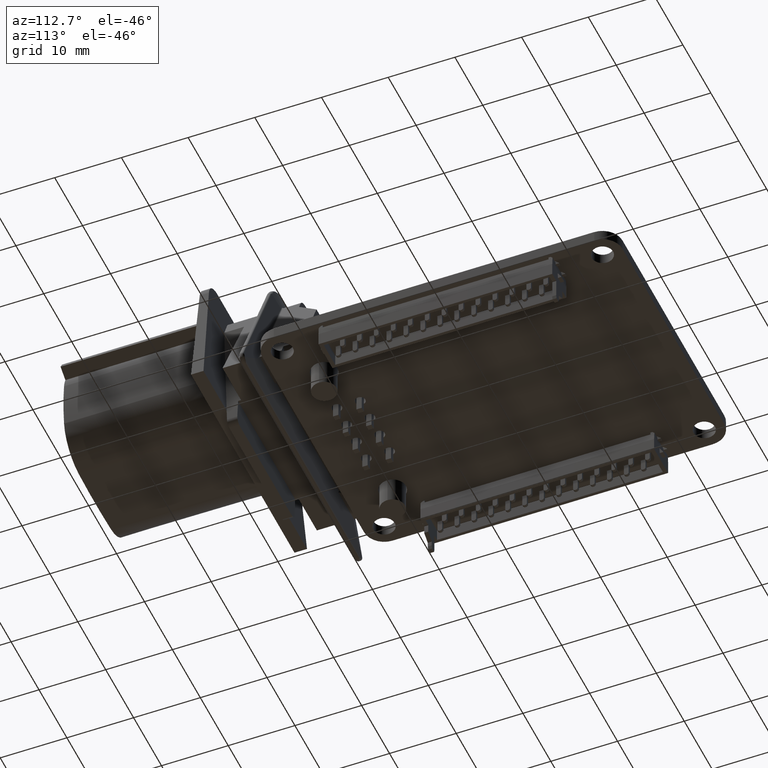
[diagram: clean part render]
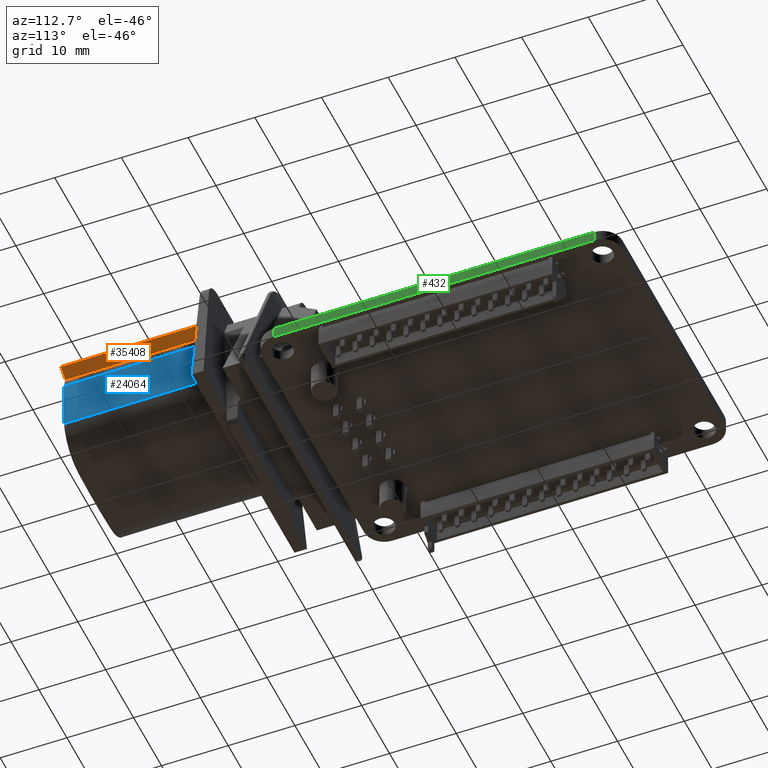
[diagram: same view with three faces highlighted in distinct colors, each labeled with its STEP entity id]
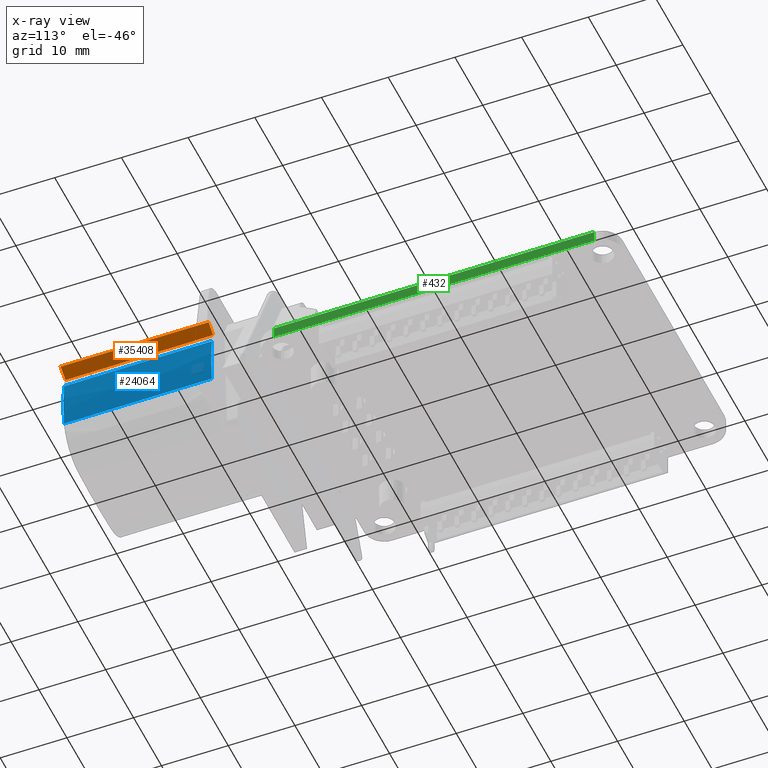
[diagram: x-ray of the same camera — body ghosted, the three highlighted faces saturated]
A machine part, auxiliary view with three faces highlighted in distinct colors.
The next image is the same camera in x-ray (body ghosted, the three faces saturated) — at least one of them is partly hidden behind the body in this view.
Their STEP definitions:

[orange] entity #35408 — the highlighted planar face has unit normal (0.5, -0.0044, -0.866).
#8755 = PLANE('',#8756);
#8756 = AXIS2_PLACEMENT_3D('',#8757,#8758,#8759);
#8757 = CARTESIAN_POINT('',(5.806851072447,19.79645137002,33.88499901064
    ));
#8758 = DIRECTION('',(0.E+000,0.E+000,1.));
#8759 = DIRECTION('',(1.,-0.E+000,0.E+000));
#8860 = PLANE('',#8861);
#8861 = AXIS2_PLACEMENT_3D('',#8862,#8863,#8864);
#8862 = CARTESIAN_POINT('',(36.91875616118,-8.181083939232,11.675));
#8863 = DIRECTION('',(0.E+000,0.E+000,-1.));
#8864 = DIRECTION('',(0.E+000,-1.,0.E+000));
#12872 = VERTEX_POINT('',#12873);
#12873 = CARTESIAN_POINT('',(17.94701419811,16.91744647375,
    33.88499901064));
#12888 = CONICAL_SURFACE('',#12889,5.7167217,4.3633231E-003);
#12889 = AXIS2_PLACEMENT_3D('',#12890,#12891,#12892);
#12890 = CARTESIAN_POINT('',(12.79530848084,14.553302746,22.77999950532)
  );
#12891 = DIRECTION('',(-0.E+000,0.E+000,-1.));
#12892 = DIRECTION('',(-1.,0.E+000,0.E+000));
#12922 = EDGE_CURVE('',#12872,#12923,#12925,.T.);
#12923 = VERTEX_POINT('',#12924);
#12924 = CARTESIAN_POINT('',(19.68362980087,17.92008195948,
    33.88499901064));
#12925 = SURFACE_CURVE('',#12926,(#12930,#12937),.PCURVE_S1.);
#12926 = LINE('',#12927,#12928);
#12927 = CARTESIAN_POINT('',(17.94701419812,16.91744647376,
    33.88499901065));
#12928 = VECTOR('',#12929,1.);
#12929 = DIRECTION('',(0.866025403784,0.500000000002,0.E+000));
#12930 = PCURVE('',#8755,#12931);
#12931 = DEFINITIONAL_REPRESENTATION('',(#12932),#12936);
#12932 = LINE('',#12933,#12934);
#12933 = CARTESIAN_POINT('',(12.140163125673,-2.87900489626));
#12934 = VECTOR('',#12935,1.);
#12935 = DIRECTION('',(0.866025403784,0.500000000002));
#12936 = ( GEOMETRIC_REPRESENTATION_CONTEXT(2) 
PARAMETRIC_REPRESENTATION_CONTEXT() REPRESENTATION_CONTEXT('2D SPACE',''
  ) );
#12937 = PCURVE('',#12938,#12943);
#12938 = PLANE('',#12939);
#12939 = AXIS2_PLACEMENT_3D('',#12940,#12941,#12942);
#12940 = CARTESIAN_POINT('',(17.49088762765,16.65410167551,
    33.88499901064));
#12941 = DIRECTION('',(0.49999524036,-0.866017159847,4.363309284747E-003
    ));
#12942 = DIRECTION('',(-2.42230247091E-018,-5.03829959332E-003,
    -0.999987307688));
#12943 = DEFINITIONAL_REPRESENTATION('',(#12944),#12948);
#12944 = LINE('',#12945,#12946);
#12945 = CARTESIAN_POINT('',(-1.32680999992E-003,0.526687925274));
#12946 = VECTOR('',#12947,1.);
#12947 = DIRECTION('',(-2.519149796668E-003,0.999996826937));
#12948 = ( GEOMETRIC_REPRESENTATION_CONTEXT(2) 
PARAMETRIC_REPRESENTATION_CONTEXT() REPRESENTATION_CONTEXT('2D SPACE',''
  ) );
#12966 = PLANE('',#12967);
#12967 = AXIS2_PLACEMENT_3D('',#12968,#12969,#12970);
#12968 = CARTESIAN_POINT('',(20.06229170071,17.26422031005,
    11.33078194883));
#12969 = DIRECTION('',(-0.866025403784,-0.5,0.E+000));
#12970 = DIRECTION('',(-0.5,0.866025403784,0.E+000));
#25051 = VERTEX_POINT('',#25052);
#25052 = CARTESIAN_POINT('',(19.73208480957,17.83615542252,11.675));
#25073 = EDGE_CURVE('',#25051,#25074,#25076,.T.);
#25074 = VERTEX_POINT('',#25075);
#25075 = CARTESIAN_POINT('',(18.07131577518,16.87730997345,11.675));
#25076 = SURFACE_CURVE('',#25077,(#25081,#25088),.PCURVE_S1.);
#25077 = LINE('',#25078,#25079);
#25078 = CARTESIAN_POINT('',(19.73208480958,17.83615542253,
    11.67500000001));
#25079 = VECTOR('',#25080,1.);
#25080 = DIRECTION('',(-0.866025403783,-0.500000000002,0.E+000));
#25081 = PCURVE('',#8860,#25082);
#25082 = DEFINITIONAL_REPRESENTATION('',(#25083),#25087);
#25083 = LINE('',#25084,#25085);
#25084 = CARTESIAN_POINT('',(-26.01723936176,17.1866713516));
#25085 = VECTOR('',#25086,1.);
#25086 = DIRECTION('',(0.500000000002,0.866025403783));
#25087 = ( GEOMETRIC_REPRESENTATION_CONTEXT(2) 
PARAMETRIC_REPRESENTATION_CONTEXT() REPRESENTATION_CONTEXT('2D SPACE',''
  ) );
#25088 = PCURVE('',#12938,#25089);
#25089 = DEFINITIONAL_REPRESENTATION('',(#25090),#25094);
#25090 = LINE('',#25091,#25092);
#25091 = CARTESIAN_POINT('',(22.203761573481,2.587903380985));
#25092 = VECTOR('',#25093,1.);
#25093 = DIRECTION('',(2.519149796669E-003,-0.999996826937));
#25094 = ( GEOMETRIC_REPRESENTATION_CONTEXT(2) 
PARAMETRIC_REPRESENTATION_CONTEXT() REPRESENTATION_CONTEXT('2D SPACE',''
  ) );
#28718 = EDGE_CURVE('',#12923,#25051,#28719,.T.);
#28719 = SURFACE_CURVE('',#28720,(#28724,#28731),.PCURVE_S1.);
#28720 = LINE('',#28721,#28722);
#28721 = CARTESIAN_POINT('',(19.68362980088,17.92008195949,
    33.88499901065));
#28722 = VECTOR('',#28723,1.);
#28723 = DIRECTION('',(2.181654642822E-003,-3.778736685608E-003,
    -0.999990480721));
#28724 = PCURVE('',#12966,#28725);
#28725 = DEFINITIONAL_REPRESENTATION('',(#28726),#28730);
#28726 = LINE('',#28727,#28728);
#28727 = CARTESIAN_POINT('',(0.757323799698,-22.55421706182));
#28728 = VECTOR('',#28729,1.);
#28729 = DIRECTION('',(-4.36330928536E-003,0.999990480721));
#28730 = ( GEOMETRIC_REPRESENTATION_CONTEXT(2) 
PARAMETRIC_REPRESENTATION_CONTEXT() REPRESENTATION_CONTEXT('2D SPACE',''
  ) );
#28731 = PCURVE('',#12938,#28732);
#28732 = DEFINITIONAL_REPRESENTATION('',(#28733),#28737);
#28733 = LINE('',#28734,#28735);
#28734 = CARTESIAN_POINT('',(-6.378387959924E-003,2.531952533887));
#28735 = VECTOR('',#28736,1.);
#28736 = DIRECTION('',(0.999996826937,2.519149796825E-003));
#28737 = ( GEOMETRIC_REPRESENTATION_CONTEXT(2) 
PARAMETRIC_REPRESENTATION_CONTEXT() REPRESENTATION_CONTEXT('2D SPACE',''
  ) );
#35358 = EDGE_CURVE('',#25074,#12872,#35359,.T.);
#35359 = SURFACE_CURVE('',#35360,(#35367,#35396),.PCURVE_S1.);
#35360 = B_SPLINE_CURVE_WITH_KNOTS('',3,(#35361,#35362,#35363,#35364,
    #35365,#35366),.UNSPECIFIED.,.F.,.F.,(4,1,1,4),(0.E+000,
    0.333333333333,0.666666666667,1.),.UNSPECIFIED.);
#35361 = CARTESIAN_POINT('',(18.07131577519,16.87730997346,
    11.67500000001));
#35362 = CARTESIAN_POINT('',(18.05758473784,16.88180157355,
    14.13993094442));
#35363 = CARTESIAN_POINT('',(18.03006800251,16.89076277727,
    19.07169064369));
#35364 = CARTESIAN_POINT('',(17.98863559288,16.90414244757,
    26.47502365952));
#35365 = CARTESIAN_POINT('',(17.96090688237,16.91301951493,
    31.41437462714));
#35366 = CARTESIAN_POINT('',(17.94701419812,16.91744647376,
    33.88499901065));
#35367 = PCURVE('',#12888,#35368);
#35368 = DEFINITIONAL_REPRESENTATION('',(#35369),#35395);
#35369 = B_SPLINE_CURVE_WITH_KNOTS('',3,(#35370,#35371,#35372,#35373,
    #35374,#35375,#35376,#35377,#35378,#35379,#35380,#35381,#35382,
    #35383,#35384,#35385,#35386,#35387,#35388,#35389,#35390,#35391,
    #35392,#35393,#35394),.UNSPECIFIED.,.F.,.F.,(4,1,1,1,1,1,1,1,1,1,1,1
    ,1,1,1,1,1,1,1,1,1,1,4),(0.E+000,4.545454545455E-002,
    9.090909090909E-002,0.136363636364,0.181818181818,0.227272727273,
    0.272727272727,0.318181818182,0.363636363636,0.409090909091,
    0.454545454545,0.5,0.545454545455,0.590909090909,0.636363636364,
    0.681818181818,0.727272727273,0.772727272727,0.818181818182,
    0.863636363636,0.909090909091,0.954545454545,1.),
  .QUASI_UNIFORM_KNOTS.);
#35370 = CARTESIAN_POINT('',(2.726678699682,11.104999505342));
#35371 = CARTESIAN_POINT('',(2.726450551812,10.768872558377));
#35372 = CARTESIAN_POINT('',(2.72599390169,10.096583374405));
#35373 = CARTESIAN_POINT('',(2.72530786003,9.088043728344));
#35374 = CARTESIAN_POINT('',(2.724620748563,8.079398212203));
#35375 = CARTESIAN_POINT('',(2.723932563955,7.070646826004));
#35376 = CARTESIAN_POINT('',(2.723243302876,6.061789569772));
#35377 = CARTESIAN_POINT('',(2.72255296199,5.052826443527));
#35378 = CARTESIAN_POINT('',(2.721861537977,4.043757447296));
#35379 = CARTESIAN_POINT('',(2.721169027448,3.034582581096));
#35380 = CARTESIAN_POINT('',(2.720475427436,2.02530184498));
#35381 = CARTESIAN_POINT('',(2.71978073516,1.015915239019));
#35382 = CARTESIAN_POINT('',(2.719084947778,6.422763275517E-003));
#35383 = CARTESIAN_POINT('',(2.718388062449,-1.003175582183));
#35384 = CARTESIAN_POINT('',(2.717690076314,-2.01287979729));
#35385 = CARTESIAN_POINT('',(2.716990986509,-3.022689881981));
#35386 = CARTESIAN_POINT('',(2.716290790129,-4.032605836184));
#35387 = CARTESIAN_POINT('',(2.71558948437,-5.042627659853));
#35388 = CARTESIAN_POINT('',(2.714887066651,-6.052755352987));
#35389 = CARTESIAN_POINT('',(2.714183534327,-7.062988915578));
#35390 = CARTESIAN_POINT('',(2.713478884745,-8.073328347621));
#35391 = CARTESIAN_POINT('',(2.712773115228,-9.08377364911));
#35392 = CARTESIAN_POINT('',(2.712066223078,-10.09432482003));
#35393 = CARTESIAN_POINT('',(2.711594211405,-10.76809618027));
#35394 = CARTESIAN_POINT('',(2.711358017557,-11.1049995053));
#35395 = ( GEOMETRIC_REPRESENTATION_CONTEXT(2) 
PARAMETRIC_REPRESENTATION_CONTEXT() REPRESENTATION_CONTEXT('2D SPACE',''
  ) );
#35396 = PCURVE('',#12938,#35397);
#35397 = DEFINITIONAL_REPRESENTATION('',(#35398),#35405);
#35398 = B_SPLINE_CURVE_WITH_KNOTS('',3,(#35399,#35400,#35401,#35402,
    #35403,#35404),.UNSPECIFIED.,.F.,.F.,(4,1,1,4),(0.E+000,
    0.333333333333,0.666666666667,1.),.UNSPECIFIED.);
#35399 = CARTESIAN_POINT('',(22.208592524118,0.670218567803));
#35400 = CARTESIAN_POINT('',(19.743670235353,0.654363381891));
#35401 = CARTESIAN_POINT('',(14.811927982287,0.622589893612));
#35402 = CARTESIAN_POINT('',(7.408621521081,0.574748019711));
#35403 = CARTESIAN_POINT('',(2.46928851992,0.542729764354));
#35404 = CARTESIAN_POINT('',(-1.326809999924E-003,0.526687925274));
#35405 = ( GEOMETRIC_REPRESENTATION_CONTEXT(2) 
PARAMETRIC_REPRESENTATION_CONTEXT() REPRESENTATION_CONTEXT('2D SPACE',''
  ) );
#35408 = ADVANCED_FACE('',(#35409),#12938,.T.);
#35409 = FACE_BOUND('',#35410,.T.);
#35410 = EDGE_LOOP('',(#35411,#35412,#35413,#35414));
#35411 = ORIENTED_EDGE('',*,*,#25073,.F.);
#35412 = ORIENTED_EDGE('',*,*,#28718,.F.);
#35413 = ORIENTED_EDGE('',*,*,#12922,.F.);
#35414 = ORIENTED_EDGE('',*,*,#35358,.F.);

[blue] entity #24064 — the highlighted conical surface has half-angle 0.25 deg.
#8755 = PLANE('',#8756);
#8756 = AXIS2_PLACEMENT_3D('',#8757,#8758,#8759);
#8757 = CARTESIAN_POINT('',(5.806851072447,19.79645137002,33.88499901064
    ));
#8758 = DIRECTION('',(0.E+000,0.E+000,1.));
#8759 = DIRECTION('',(1.,-0.E+000,0.E+000));
#8860 = PLANE('',#8861);
#8861 = AXIS2_PLACEMENT_3D('',#8862,#8863,#8864);
#8862 = CARTESIAN_POINT('',(36.91875616118,-8.181083939232,11.675));
#8863 = DIRECTION('',(0.E+000,0.E+000,-1.));
#8864 = DIRECTION('',(0.E+000,-1.,0.E+000));
#12770 = VERTEX_POINT('',#12771);
#12771 = CARTESIAN_POINT('',(18.42442906635,7.785810971113,
    33.88499901064));
#12786 = CONICAL_SURFACE('',#12787,5.7167217,4.3633231E-003);
#12787 = AXIS2_PLACEMENT_3D('',#12788,#12789,#12790);
#12788 = CARTESIAN_POINT('',(12.79530848084,8.450828863081,
    22.77999950532));
#12789 = DIRECTION('',(-0.E+000,0.E+000,-1.));
#12790 = DIRECTION('',(-1.,0.E+000,0.E+000));
#12820 = EDGE_CURVE('',#12770,#12821,#12823,.T.);
#12821 = VERTEX_POINT('',#12822);
#12822 = CARTESIAN_POINT('',(18.42442906635,15.21832063796,
    33.88499901064));
#12823 = SURFACE_CURVE('',#12824,(#12829,#12836),.PCURVE_S1.);
#12824 = CIRCLE('',#12825,31.6754237);
#12825 = AXIS2_PLACEMENT_3D('',#12826,#12827,#12828);
#12826 = CARTESIAN_POINT('',(-13.03223824515,11.50206580455,
    33.88499901065));
#12827 = DIRECTION('',(-0.E+000,0.E+000,1.));
#12828 = DIRECTION('',(0.993093812473,-0.117322971442,0.E+000));
#12829 = PCURVE('',#8755,#12830);
#12830 = DEFINITIONAL_REPRESENTATION('',(#12831),#12835);
#12831 = CIRCLE('',#12832,31.6754237);
#12832 = AXIS2_PLACEMENT_2D('',#12833,#12834);
#12833 = CARTESIAN_POINT('',(-18.83908931759,-8.29438556547));
#12834 = DIRECTION('',(0.993093812473,-0.117322971442));
#12835 = ( GEOMETRIC_REPRESENTATION_CONTEXT(2) 
PARAMETRIC_REPRESENTATION_CONTEXT() REPRESENTATION_CONTEXT('2D SPACE',''
  ) );
#12836 = PCURVE('',#12837,#12842);
#12837 = CONICAL_SURFACE('',#12838,31.7238787,4.3633231E-003);
#12838 = AXIS2_PLACEMENT_3D('',#12839,#12840,#12841);
#12839 = CARTESIAN_POINT('',(-13.03223824514,11.50206580454,
    22.77999950532));
#12840 = DIRECTION('',(-0.E+000,0.E+000,-1.));
#12841 = DIRECTION('',(-1.,0.E+000,0.E+000));
#12842 = DEFINITIONAL_REPRESENTATION('',(#12843),#12869);
#12843 = B_SPLINE_CURVE_WITH_KNOTS('',3,(#12844,#12845,#12846,#12847,
    #12848,#12849,#12850,#12851,#12852,#12853,#12854,#12855,#12856,
    #12857,#12858,#12859,#12860,#12861,#12862,#12863,#12864,#12865,
    #12866,#12867,#12868),.UNSPECIFIED.,.F.,.F.,(4,1,1,1,1,1,1,1,1,1,1,1
    ,1,1,1,1,1,1,1,1,1,1,4),(0.E+000,1.069034587032E-002,
    2.138069174065E-002,3.207103761097E-002,4.276138348129E-002,
    5.345172935162E-002,6.414207522194E-002,7.483242109226E-002,
    8.552276696259E-002,9.621311283291E-002,0.106903458703,
    0.117593804574,0.128284150444,0.138974496314,0.149664842185,
    0.160355188055,0.171045533925,0.181735879795,0.192426225666,
    0.203116571536,0.213806917406,0.224497263277,0.235187609147),
  .QUASI_UNIFORM_KNOTS.);
#12844 = CARTESIAN_POINT('',(3.259186458163,-11.10499950529));
#12845 = CARTESIAN_POINT('',(3.25562300954,-11.10499950529));
#12846 = CARTESIAN_POINT('',(3.248496112293,-11.10499950529));
#12847 = CARTESIAN_POINT('',(3.237805766423,-11.10499950529));
#12848 = CARTESIAN_POINT('',(3.227115420552,-11.10499950529));
#12849 = CARTESIAN_POINT('',(3.216425074682,-11.10499950529));
#12850 = CARTESIAN_POINT('',(3.205734728812,-11.10499950529));
#12851 = CARTESIAN_POINT('',(3.195044382941,-11.10499950529));
#12852 = CARTESIAN_POINT('',(3.184354037071,-11.10499950529));
#12853 = CARTESIAN_POINT('',(3.173663691201,-11.10499950529));
#12854 = CARTESIAN_POINT('',(3.162973345331,-11.10499950529));
#12855 = CARTESIAN_POINT('',(3.15228299946,-11.10499950529));
#12856 = CARTESIAN_POINT('',(3.14159265359,-11.10499950529));
#12857 = CARTESIAN_POINT('',(3.13090230772,-11.10499950529));
#12858 = CARTESIAN_POINT('',(3.120211961849,-11.10499950529));
#12859 = CARTESIAN_POINT('',(3.109521615979,-11.10499950529));
#12860 = CARTESIAN_POINT('',(3.098831270109,-11.10499950529));
#12861 = CARTESIAN_POINT('',(3.088140924238,-11.10499950529));
#12862 = CARTESIAN_POINT('',(3.077450578368,-11.10499950529));
#12863 = CARTESIAN_POINT('',(3.066760232498,-11.10499950529));
#12864 = CARTESIAN_POINT('',(3.056069886627,-11.10499950529));
#12865 = CARTESIAN_POINT('',(3.045379540757,-11.10499950529));
#12866 = CARTESIAN_POINT('',(3.034689194887,-11.10499950529));
#12867 = CARTESIAN_POINT('',(3.02756229764,-11.10499950529));
#12868 = CARTESIAN_POINT('',(3.023998849016,-11.10499950529));
#12869 = ( GEOMETRIC_REPRESENTATION_CONTEXT(2) 
PARAMETRIC_REPRESENTATION_CONTEXT() REPRESENTATION_CONTEXT('2D SPACE',''
  ) );
#12888 = CONICAL_SURFACE('',#12889,5.7167217,4.3633231E-003);
#12889 = AXIS2_PLACEMENT_3D('',#12890,#12891,#12892);
#12890 = CARTESIAN_POINT('',(12.79530848084,14.553302746,22.77999950532)
  );
#12891 = DIRECTION('',(-0.E+000,0.E+000,-1.));
#12892 = DIRECTION('',(-1.,0.E+000,0.E+000));
#23952 = EDGE_CURVE('',#12770,#23953,#23955,.T.);
#23953 = VERTEX_POINT('',#23954);
#23954 = CARTESIAN_POINT('',(18.52066980501,7.774441199908,11.675));
#23955 = SURFACE_CURVE('',#23956,(#23960,#23989),.PCURVE_S1.);
#23956 = LINE('',#23957,#23958);
#23957 = CARTESIAN_POINT('',(18.42442906636,7.785810971123,
    33.88499901065));
#23958 = VECTOR('',#23959,1.);
#23959 = DIRECTION('',(4.333175453037E-003,-5.119164110526E-004,
    -0.999990480721));
#23960 = PCURVE('',#12786,#23961);
#23961 = DEFINITIONAL_REPRESENTATION('',(#23962),#23988);
#23962 = B_SPLINE_CURVE_WITH_KNOTS('',3,(#23963,#23964,#23965,#23966,
    #23967,#23968,#23969,#23970,#23971,#23972,#23973,#23974,#23975,
    #23976,#23977,#23978,#23979,#23980,#23981,#23982,#23983,#23984,
    #23985,#23986,#23987),.UNSPECIFIED.,.F.,.F.,(4,1,1,1,1,1,1,1,1,1,1,1
    ,1,1,1,1,1,1,1,1,1,1,4),(9.959040531699E-012,1.009555019821,
    2.019110039631,3.028665059442,4.038220079253,5.047775099064,
    6.057330118874,7.066885138685,8.076440158496,9.085995178306,
    10.095550198117,11.105105217928,12.114660237739,13.124215257549,
    14.13377027736,15.143325297171,16.152880316981,17.162435336792,
    18.171990356603,19.181545376414,20.191100396224,21.200655416035,
    22.210210435846),.QUASI_UNIFORM_KNOTS.);
#23963 = CARTESIAN_POINT('',(3.259186458161,-11.10499950529));
#23964 = CARTESIAN_POINT('',(3.259186458161,-10.76848436876));
#23965 = CARTESIAN_POINT('',(3.259186458162,-10.09545409571));
#23966 = CARTESIAN_POINT('',(3.259186458162,-9.085908686142));
#23967 = CARTESIAN_POINT('',(3.259186458162,-8.076363276567));
#23968 = CARTESIAN_POINT('',(3.259186458162,-7.066817866992));
#23969 = CARTESIAN_POINT('',(3.259186458162,-6.057272457418));
#23970 = CARTESIAN_POINT('',(3.259186458162,-5.047727047843));
#23971 = CARTESIAN_POINT('',(3.259186458162,-4.038181638268));
#23972 = CARTESIAN_POINT('',(3.259186458162,-3.028636228694));
#23973 = CARTESIAN_POINT('',(3.259186458162,-2.019090819119));
#23974 = CARTESIAN_POINT('',(3.259186458162,-1.009545409544));
#23975 = CARTESIAN_POINT('',(3.259186458162,3.048739648704E-011));
#23976 = CARTESIAN_POINT('',(3.259186458162,1.009545409605));
#23977 = CARTESIAN_POINT('',(3.259186458162,2.01909081918));
#23978 = CARTESIAN_POINT('',(3.259186458162,3.028636228755));
#23979 = CARTESIAN_POINT('',(3.259186458163,4.038181638329));
#23980 = CARTESIAN_POINT('',(3.259186458163,5.047727047904));
#23981 = CARTESIAN_POINT('',(3.259186458163,6.057272457479));
#23982 = CARTESIAN_POINT('',(3.259186458163,7.066817867053));
#23983 = CARTESIAN_POINT('',(3.259186458163,8.076363276628));
#23984 = CARTESIAN_POINT('',(3.259186458163,9.085908686203));
#23985 = CARTESIAN_POINT('',(3.259186458163,10.095454095777));
#23986 = CARTESIAN_POINT('',(3.259186458163,10.768484368827));
#23987 = CARTESIAN_POINT('',(3.259186458163,11.104999505352));
#23988 = ( GEOMETRIC_REPRESENTATION_CONTEXT(2) 
PARAMETRIC_REPRESENTATION_CONTEXT() REPRESENTATION_CONTEXT('2D SPACE',''
  ) );
#23989 = PCURVE('',#12837,#23990);
#23990 = DEFINITIONAL_REPRESENTATION('',(#23991),#24017);
#23991 = B_SPLINE_CURVE_WITH_KNOTS('',3,(#23992,#23993,#23994,#23995,
    #23996,#23997,#23998,#23999,#24000,#24001,#24002,#24003,#24004,
    #24005,#24006,#24007,#24008,#24009,#24010,#24011,#24012,#24013,
    #24014,#24015,#24016),.UNSPECIFIED.,.F.,.F.,(4,1,1,1,1,1,1,1,1,1,1,1
    ,1,1,1,1,1,1,1,1,1,1,4),(9.959040531699E-012,1.009555019821,
    2.019110039631,3.028665059442,4.038220079253,5.047775099064,
    6.057330118874,7.066885138685,8.076440158496,9.085995178306,
    10.095550198117,11.105105217928,12.114660237739,13.124215257549,
    14.13377027736,15.143325297171,16.152880316981,17.162435336792,
    18.171990356603,19.181545376414,20.191100396224,21.200655416035,
    22.210210435846),.QUASI_UNIFORM_KNOTS.);
#23992 = CARTESIAN_POINT('',(3.259186458163,-11.10499950516));
#23993 = CARTESIAN_POINT('',(3.259186458163,-10.76848436863));
#23994 = CARTESIAN_POINT('',(3.259186458163,-10.09545409558));
#23995 = CARTESIAN_POINT('',(3.259186458163,-9.085908686013));
#23996 = CARTESIAN_POINT('',(3.259186458163,-8.076363276438));
#23997 = CARTESIAN_POINT('',(3.259186458163,-7.066817866864));
#23998 = CARTESIAN_POINT('',(3.259186458163,-6.057272457289));
#23999 = CARTESIAN_POINT('',(3.259186458163,-5.047727047714));
#24000 = CARTESIAN_POINT('',(3.259186458163,-4.03818163814));
#24001 = CARTESIAN_POINT('',(3.259186458163,-3.028636228565));
#24002 = CARTESIAN_POINT('',(3.259186458163,-2.01909081899));
#24003 = CARTESIAN_POINT('',(3.259186458163,-1.009545409416));
#24004 = CARTESIAN_POINT('',(3.259186458163,1.590807781682E-010));
#24005 = CARTESIAN_POINT('',(3.259186458163,1.009545409734));
#24006 = CARTESIAN_POINT('',(3.259186458163,2.019090819308));
#24007 = CARTESIAN_POINT('',(3.259186458163,3.028636228883));
#24008 = CARTESIAN_POINT('',(3.259186458163,4.038181638458));
#24009 = CARTESIAN_POINT('',(3.259186458163,5.047727048032));
#24010 = CARTESIAN_POINT('',(3.259186458163,6.057272457607));
#24011 = CARTESIAN_POINT('',(3.259186458163,7.066817867182));
#24012 = CARTESIAN_POINT('',(3.259186458163,8.076363276757));
#24013 = CARTESIAN_POINT('',(3.259186458163,9.085908686331));
#24014 = CARTESIAN_POINT('',(3.259186458163,10.095454095906));
#24015 = CARTESIAN_POINT('',(3.259186458163,10.768484368956));
#24016 = CARTESIAN_POINT('',(3.259186458163,11.104999505481));
#24017 = ( GEOMETRIC_REPRESENTATION_CONTEXT(2) 
PARAMETRIC_REPRESENTATION_CONTEXT() REPRESENTATION_CONTEXT('2D SPACE',''
  ) );
#24064 = ADVANCED_FACE('',(#24065),#12837,.T.);
#24065 = FACE_BOUND('',#24066,.T.);
#24066 = EDGE_LOOP('',(#24067,#24113,#24178,#24179));
#24067 = ORIENTED_EDGE('',*,*,#24068,.F.);
#24068 = EDGE_CURVE('',#24069,#23953,#24071,.T.);
#24069 = VERTEX_POINT('',#24070);
#24070 = CARTESIAN_POINT('',(18.52066980501,15.22969040917,11.675));
#24071 = SURFACE_CURVE('',#24072,(#24077,#24106),.PCURVE_S1.);
#24072 = CIRCLE('',#24073,31.7723337);
#24073 = AXIS2_PLACEMENT_3D('',#24074,#24075,#24076);
#24074 = CARTESIAN_POINT('',(-13.03223824515,11.50206580455,
    11.67500000001));
#24075 = DIRECTION('',(0.E+000,0.E+000,-1.));
#24076 = DIRECTION('',(0.993093812473,0.117322971442,0.E+000));
#24077 = PCURVE('',#12837,#24078);
#24078 = DEFINITIONAL_REPRESENTATION('',(#24079),#24105);
#24079 = B_SPLINE_CURVE_WITH_KNOTS('',3,(#24080,#24081,#24082,#24083,
    #24084,#24085,#24086,#24087,#24088,#24089,#24090,#24091,#24092,
    #24093,#24094,#24095,#24096,#24097,#24098,#24099,#24100,#24101,
    #24102,#24103,#24104),.UNSPECIFIED.,.F.,.F.,(4,1,1,1,1,1,1,1,1,1,1,1
    ,1,1,1,1,1,1,1,1,1,1,4),(0.E+000,1.069034587036E-002,
    2.138069174072E-002,3.207103761108E-002,4.276138348144E-002,
    5.345172935181E-002,6.414207522217E-002,7.483242109253E-002,
    8.552276696289E-002,9.621311283325E-002,0.106903458704,
    0.117593804574,0.128284150444,0.138974496315,0.149664842185,
    0.160355188055,0.171045533926,0.181735879796,0.192426225667,
    0.203116571537,0.213806917407,0.224497263278,0.235187609148),
  .QUASI_UNIFORM_KNOTS.);
#24080 = CARTESIAN_POINT('',(3.023998849016,11.104999505273));
#24081 = CARTESIAN_POINT('',(3.027562297639,11.104999505273));
#24082 = CARTESIAN_POINT('',(3.034689194886,11.104999505273));
#24083 = CARTESIAN_POINT('',(3.045379540756,11.104999505273));
#24084 = CARTESIAN_POINT('',(3.056069886627,11.104999505273));
#24085 = CARTESIAN_POINT('',(3.066760232497,11.104999505273));
#24086 = CARTESIAN_POINT('',(3.077450578367,11.104999505273));
#24087 = CARTESIAN_POINT('',(3.088140924238,11.104999505273));
#24088 = CARTESIAN_POINT('',(3.098831270108,11.104999505273));
#24089 = CARTESIAN_POINT('',(3.109521615978,11.104999505273));
#24090 = CARTESIAN_POINT('',(3.120211961849,11.104999505273));
#24091 = CARTESIAN_POINT('',(3.130902307719,11.104999505273));
#24092 = CARTESIAN_POINT('',(3.14159265359,11.104999505273));
#24093 = CARTESIAN_POINT('',(3.15228299946,11.104999505273));
#24094 = CARTESIAN_POINT('',(3.16297334533,11.104999505273));
#24095 = CARTESIAN_POINT('',(3.173663691201,11.104999505273));
#24096 = CARTESIAN_POINT('',(3.184354037071,11.104999505273));
#24097 = CARTESIAN_POINT('',(3.195044382941,11.104999505273));
#24098 = CARTESIAN_POINT('',(3.205734728812,11.104999505273));
#24099 = CARTESIAN_POINT('',(3.216425074682,11.104999505273));
#24100 = CARTESIAN_POINT('',(3.227115420552,11.104999505273));
#24101 = CARTESIAN_POINT('',(3.237805766423,11.104999505273));
#24102 = CARTESIAN_POINT('',(3.248496112293,11.104999505273));
#24103 = CARTESIAN_POINT('',(3.25562300954,11.104999505273));
#24104 = CARTESIAN_POINT('',(3.259186458164,11.104999505273));
#24105 = ( GEOMETRIC_REPRESENTATION_CONTEXT(2) 
PARAMETRIC_REPRESENTATION_CONTEXT() REPRESENTATION_CONTEXT('2D SPACE',''
  ) );
#24106 = PCURVE('',#8860,#24107);
#24107 = DEFINITIONAL_REPRESENTATION('',(#24108),#24112);
#24108 = CIRCLE('',#24109,31.7723337);
#24109 = AXIS2_PLACEMENT_2D('',#24110,#24111);
#24110 = CARTESIAN_POINT('',(-19.68314974378,49.95099440633));
#24111 = DIRECTION('',(-0.117322971442,-0.993093812473));
#24112 = ( GEOMETRIC_REPRESENTATION_CONTEXT(2) 
PARAMETRIC_REPRESENTATION_CONTEXT() REPRESENTATION_CONTEXT('2D SPACE',''
  ) );
#24113 = ORIENTED_EDGE('',*,*,#24114,.F.);
#24114 = EDGE_CURVE('',#12821,#24069,#24115,.T.);
#24115 = SURFACE_CURVE('',#24116,(#24120,#24149),.PCURVE_S1.);
#24116 = LINE('',#24117,#24118);
#24117 = CARTESIAN_POINT('',(18.42442906636,15.21832063797,
    33.88499901065));
#24118 = VECTOR('',#24119,1.);
#24119 = DIRECTION('',(4.333175453038E-003,5.119164110458E-004,
    -0.999990480721));
#24120 = PCURVE('',#12837,#24121);
#24121 = DEFINITIONAL_REPRESENTATION('',(#24122),#24148);
#24122 = B_SPLINE_CURVE_WITH_KNOTS('',3,(#24123,#24124,#24125,#24126,
    #24127,#24128,#24129,#24130,#24131,#24132,#24133,#24134,#24135,
    #24136,#24137,#24138,#24139,#24140,#24141,#24142,#24143,#24144,
    #24145,#24146,#24147),.UNSPECIFIED.,.F.,.F.,(4,1,1,1,1,1,1,1,1,1,1,1
    ,1,1,1,1,1,1,1,1,1,1,4),(9.948801293284E-012,1.009555019821,
    2.019110039631,3.028665059442,4.038220079253,5.047775099064,
    6.057330118874,7.066885138685,8.076440158496,9.085995178306,
    10.095550198117,11.105105217928,12.114660237739,13.124215257549,
    14.13377027736,15.143325297171,16.152880316981,17.162435336792,
    18.171990356603,19.181545376414,20.191100396224,21.200655416035,
    22.210210435846),.QUASI_UNIFORM_KNOTS.);
#24123 = CARTESIAN_POINT('',(3.023998849016,-11.10499950516));
#24124 = CARTESIAN_POINT('',(3.023998849016,-10.76848436863));
#24125 = CARTESIAN_POINT('',(3.023998849016,-10.09545409558));
#24126 = CARTESIAN_POINT('',(3.023998849016,-9.085908686013));
#24127 = CARTESIAN_POINT('',(3.023998849016,-8.076363276438));
#24128 = CARTESIAN_POINT('',(3.023998849016,-7.066817866864));
#24129 = CARTESIAN_POINT('',(3.023998849016,-6.057272457289));
#24130 = CARTESIAN_POINT('',(3.023998849016,-5.047727047714));
#24131 = CARTESIAN_POINT('',(3.023998849016,-4.03818163814));
#24132 = CARTESIAN_POINT('',(3.023998849016,-3.028636228565));
#24133 = CARTESIAN_POINT('',(3.023998849016,-2.01909081899));
#24134 = CARTESIAN_POINT('',(3.023998849016,-1.009545409416));
#24135 = CARTESIAN_POINT('',(3.023998849016,1.590803616882E-010));
#24136 = CARTESIAN_POINT('',(3.023998849016,1.009545409734));
#24137 = CARTESIAN_POINT('',(3.023998849016,2.019090819308));
#24138 = CARTESIAN_POINT('',(3.023998849016,3.028636228883));
#24139 = CARTESIAN_POINT('',(3.023998849016,4.038181638458));
#24140 = CARTESIAN_POINT('',(3.023998849016,5.047727048032));
#24141 = CARTESIAN_POINT('',(3.023998849016,6.057272457607));
#24142 = CARTESIAN_POINT('',(3.023998849016,7.066817867182));
#24143 = CARTESIAN_POINT('',(3.023998849016,8.076363276757));
#24144 = CARTESIAN_POINT('',(3.023998849016,9.085908686331));
#24145 = CARTESIAN_POINT('',(3.023998849016,10.095454095906));
#24146 = CARTESIAN_POINT('',(3.023998849016,10.768484368956));
#24147 = CARTESIAN_POINT('',(3.023998849016,11.104999505481));
#24148 = ( GEOMETRIC_REPRESENTATION_CONTEXT(2) 
PARAMETRIC_REPRESENTATION_CONTEXT() REPRESENTATION_CONTEXT('2D SPACE',''
  ) );
#24149 = PCURVE('',#12888,#24150);
#24150 = DEFINITIONAL_REPRESENTATION('',(#24151),#24177);
#24151 = B_SPLINE_CURVE_WITH_KNOTS('',3,(#24152,#24153,#24154,#24155,
    #24156,#24157,#24158,#24159,#24160,#24161,#24162,#24163,#24164,
    #24165,#24166,#24167,#24168,#24169,#24170,#24171,#24172,#24173,
    #24174,#24175,#24176),.UNSPECIFIED.,.F.,.F.,(4,1,1,1,1,1,1,1,1,1,1,1
    ,1,1,1,1,1,1,1,1,1,1,4),(9.948801293284E-012,1.009555019821,
    2.019110039631,3.028665059442,4.038220079253,5.047775099064,
    6.057330118874,7.066885138685,8.076440158496,9.085995178306,
    10.095550198117,11.105105217928,12.114660237739,13.124215257549,
    14.13377027736,15.143325297171,16.152880316981,17.162435336792,
    18.171990356603,19.181545376414,20.191100396224,21.200655416035,
    22.210210435846),.QUASI_UNIFORM_KNOTS.);
#24152 = CARTESIAN_POINT('',(3.023998849016,-11.10499950529));
#24153 = CARTESIAN_POINT('',(3.023998849016,-10.76848436876));
#24154 = CARTESIAN_POINT('',(3.023998849016,-10.09545409571));
#24155 = CARTESIAN_POINT('',(3.023998849016,-9.085908686142));
#24156 = CARTESIAN_POINT('',(3.023998849016,-8.076363276567));
#24157 = CARTESIAN_POINT('',(3.023998849016,-7.066817866992));
#24158 = CARTESIAN_POINT('',(3.023998849016,-6.057272457418));
#24159 = CARTESIAN_POINT('',(3.023998849016,-5.047727047843));
#24160 = CARTESIAN_POINT('',(3.023998849016,-4.038181638268));
#24161 = CARTESIAN_POINT('',(3.023998849015,-3.028636228694));
#24162 = CARTESIAN_POINT('',(3.023998849015,-2.019090819119));
#24163 = CARTESIAN_POINT('',(3.023998849015,-1.009545409544));
#24164 = CARTESIAN_POINT('',(3.023998849015,3.048656354881E-011));
#24165 = CARTESIAN_POINT('',(3.023998849015,1.009545409605));
#24166 = CARTESIAN_POINT('',(3.023998849015,2.01909081918));
#24167 = CARTESIAN_POINT('',(3.023998849015,3.028636228755));
#24168 = CARTESIAN_POINT('',(3.023998849015,4.038181638329));
#24169 = CARTESIAN_POINT('',(3.023998849015,5.047727047904));
#24170 = CARTESIAN_POINT('',(3.023998849015,6.057272457479));
#24171 = CARTESIAN_POINT('',(3.023998849015,7.066817867053));
#24172 = CARTESIAN_POINT('',(3.023998849015,8.076363276628));
#24173 = CARTESIAN_POINT('',(3.023998849015,9.085908686203));
#24174 = CARTESIAN_POINT('',(3.023998849015,10.095454095777));
#24175 = CARTESIAN_POINT('',(3.023998849015,10.768484368827));
#24176 = CARTESIAN_POINT('',(3.023998849015,11.104999505352));
#24177 = ( GEOMETRIC_REPRESENTATION_CONTEXT(2) 
PARAMETRIC_REPRESENTATION_CONTEXT() REPRESENTATION_CONTEXT('2D SPACE',''
  ) );
#24178 = ORIENTED_EDGE('',*,*,#12820,.F.);
#24179 = ORIENTED_EDGE('',*,*,#23952,.T.);

[green] entity #432 — the highlighted planar face has unit normal (1, 0, 0).
#119 = PLANE('',#120);
#120 = AXIS2_PLACEMENT_3D('',#121,#122,#123);
#121 = CARTESIAN_POINT('',(100.00000066,102.99999974,1.64592));
#122 = DIRECTION('',(0.E+000,0.E+000,1.));
#123 = DIRECTION('',(1.,0.E+000,-0.E+000));
#173 = PLANE('',#174);
#174 = AXIS2_PLACEMENT_3D('',#175,#176,#177);
#175 = CARTESIAN_POINT('',(100.00000066,102.99999974,0.E+000));
#176 = DIRECTION('',(0.E+000,0.E+000,1.));
#177 = DIRECTION('',(1.,0.E+000,-0.E+000));
#314 = CYLINDRICAL_SURFACE('',#315,3.000001104704);
#315 = AXIS2_PLACEMENT_3D('',#316,#317,#318);
#316 = CARTESIAN_POINT('',(139.49999837529,150.99999823529,0.E+000));
#317 = DIRECTION('',(0.E+000,0.E+000,-1.));
#318 = DIRECTION('',(6.749008678046E-007,1.,0.E+000));
#352 = VERTEX_POINT('',#353);
#353 = CARTESIAN_POINT('',(142.49999948,151.00000026,1.64592));
#379 = EDGE_CURVE('',#380,#352,#382,.T.);
#380 = VERTEX_POINT('',#381);
#381 = CARTESIAN_POINT('',(142.49999948,151.00000026,0.E+000));
#382 = SURFACE_CURVE('',#383,(#387,#394),.PCURVE_S1.);
#383 = LINE('',#384,#385);
#384 = CARTESIAN_POINT('',(142.49999948,151.00000026,0.E+000));
#385 = VECTOR('',#386,1.);
#386 = DIRECTION('',(0.E+000,0.E+000,1.));
#387 = PCURVE('',#314,#388);
#388 = DEFINITIONAL_REPRESENTATION('',(#389),#393);
#389 = LINE('',#390,#391);
#390 = CARTESIAN_POINT('',(1.570794976993,0.E+000));
#391 = VECTOR('',#392,1.);
#392 = DIRECTION('',(0.E+000,-1.));
#393 = ( GEOMETRIC_REPRESENTATION_CONTEXT(2) 
PARAMETRIC_REPRESENTATION_CONTEXT() REPRESENTATION_CONTEXT('2D SPACE',''
  ) );
#394 = PCURVE('',#395,#400);
#395 = PLANE('',#396);
#396 = AXIS2_PLACEMENT_3D('',#397,#398,#399);
#397 = CARTESIAN_POINT('',(142.49999948,151.00000026,0.E+000));
#398 = DIRECTION('',(1.,0.E+000,-0.E+000));
#399 = DIRECTION('',(0.E+000,-1.,0.E+000));
#400 = DEFINITIONAL_REPRESENTATION('',(#401),#405);
#401 = LINE('',#402,#403);
#402 = CARTESIAN_POINT('',(0.E+000,0.E+000));
#403 = VECTOR('',#404,1.);
#404 = DIRECTION('',(0.E+000,-1.));
#405 = ( GEOMETRIC_REPRESENTATION_CONTEXT(2) 
PARAMETRIC_REPRESENTATION_CONTEXT() REPRESENTATION_CONTEXT('2D SPACE',''
  ) );
#432 = ADVANCED_FACE('',(#433),#395,.T.);
#433 = FACE_BOUND('',#434,.T.);
#434 = EDGE_LOOP('',(#435,#436,#459,#487));
#435 = ORIENTED_EDGE('',*,*,#379,.T.);
#436 = ORIENTED_EDGE('',*,*,#437,.T.);
#437 = EDGE_CURVE('',#352,#438,#440,.T.);
#438 = VERTEX_POINT('',#439);
#439 = CARTESIAN_POINT('',(142.49999948,102.99999974,1.64592));
#440 = SURFACE_CURVE('',#441,(#445,#452),.PCURVE_S1.);
#441 = LINE('',#442,#443);
#442 = CARTESIAN_POINT('',(142.49999948,151.00000026,1.64592));
#443 = VECTOR('',#444,1.);
#444 = DIRECTION('',(0.E+000,-1.,0.E+000));
#445 = PCURVE('',#395,#446);
#446 = DEFINITIONAL_REPRESENTATION('',(#447),#451);
#447 = LINE('',#448,#449);
#448 = CARTESIAN_POINT('',(0.E+000,-1.64592));
#449 = VECTOR('',#450,1.);
#450 = DIRECTION('',(1.,0.E+000));
#451 = ( GEOMETRIC_REPRESENTATION_CONTEXT(2) 
PARAMETRIC_REPRESENTATION_CONTEXT() REPRESENTATION_CONTEXT('2D SPACE',''
  ) );
#452 = PCURVE('',#119,#453);
#453 = DEFINITIONAL_REPRESENTATION('',(#454),#458);
#454 = LINE('',#455,#456);
#455 = CARTESIAN_POINT('',(42.49999882,48.00000052));
#456 = VECTOR('',#457,1.);
#457 = DIRECTION('',(0.E+000,-1.));
#458 = ( GEOMETRIC_REPRESENTATION_CONTEXT(2) 
PARAMETRIC_REPRESENTATION_CONTEXT() REPRESENTATION_CONTEXT('2D SPACE',''
  ) );
#459 = ORIENTED_EDGE('',*,*,#460,.F.);
#460 = EDGE_CURVE('',#461,#438,#463,.T.);
#461 = VERTEX_POINT('',#462);
#462 = CARTESIAN_POINT('',(142.49999948,102.99999974,0.E+000));
#463 = SURFACE_CURVE('',#464,(#468,#475),.PCURVE_S1.);
#464 = LINE('',#465,#466);
#465 = CARTESIAN_POINT('',(142.49999948,102.99999974,0.E+000));
#466 = VECTOR('',#467,1.);
#467 = DIRECTION('',(0.E+000,0.E+000,1.));
#468 = PCURVE('',#395,#469);
#469 = DEFINITIONAL_REPRESENTATION('',(#470),#474);
#470 = LINE('',#471,#472);
#471 = CARTESIAN_POINT('',(48.00000052,0.E+000));
#472 = VECTOR('',#473,1.);
#473 = DIRECTION('',(0.E+000,-1.));
#474 = ( GEOMETRIC_REPRESENTATION_CONTEXT(2) 
PARAMETRIC_REPRESENTATION_CONTEXT() REPRESENTATION_CONTEXT('2D SPACE',''
  ) );
#475 = PCURVE('',#476,#481);
#476 = CYLINDRICAL_SURFACE('',#477,3.000001104704);
#477 = AXIS2_PLACEMENT_3D('',#478,#479,#480);
#478 = CARTESIAN_POINT('',(139.49999837529,103.0000017647,0.E+000));
#479 = DIRECTION('',(0.E+000,0.E+000,-1.));
#480 = DIRECTION('',(1.,-6.749008772785E-007,0.E+000));
#481 = DEFINITIONAL_REPRESENTATION('',(#482),#486);
#482 = LINE('',#483,#484);
#483 = CARTESIAN_POINT('',(0.E+000,0.E+000));
#484 = VECTOR('',#485,1.);
#485 = DIRECTION('',(0.E+000,-1.));
#486 = ( GEOMETRIC_REPRESENTATION_CONTEXT(2) 
PARAMETRIC_REPRESENTATION_CONTEXT() REPRESENTATION_CONTEXT('2D SPACE',''
  ) );
#487 = ORIENTED_EDGE('',*,*,#488,.F.);
#488 = EDGE_CURVE('',#380,#461,#489,.T.);
#489 = SURFACE_CURVE('',#490,(#494,#501),.PCURVE_S1.);
#490 = LINE('',#491,#492);
#491 = CARTESIAN_POINT('',(142.49999948,151.00000026,0.E+000));
#492 = VECTOR('',#493,1.);
#493 = DIRECTION('',(0.E+000,-1.,0.E+000));
#494 = PCURVE('',#395,#495);
#495 = DEFINITIONAL_REPRESENTATION('',(#496),#500);
#496 = LINE('',#497,#498);
#497 = CARTESIAN_POINT('',(0.E+000,0.E+000));
#498 = VECTOR('',#499,1.);
#499 = DIRECTION('',(1.,0.E+000));
#500 = ( GEOMETRIC_REPRESENTATION_CONTEXT(2) 
PARAMETRIC_REPRESENTATION_CONTEXT() REPRESENTATION_CONTEXT('2D SPACE',''
  ) );
#501 = PCURVE('',#173,#502);
#502 = DEFINITIONAL_REPRESENTATION('',(#503),#507);
#503 = LINE('',#504,#505);
#504 = CARTESIAN_POINT('',(42.49999882,48.00000052));
#505 = VECTOR('',#506,1.);
#506 = DIRECTION('',(0.E+000,-1.));
#507 = ( GEOMETRIC_REPRESENTATION_CONTEXT(2) 
PARAMETRIC_REPRESENTATION_CONTEXT() REPRESENTATION_CONTEXT('2D SPACE',''
  ) );